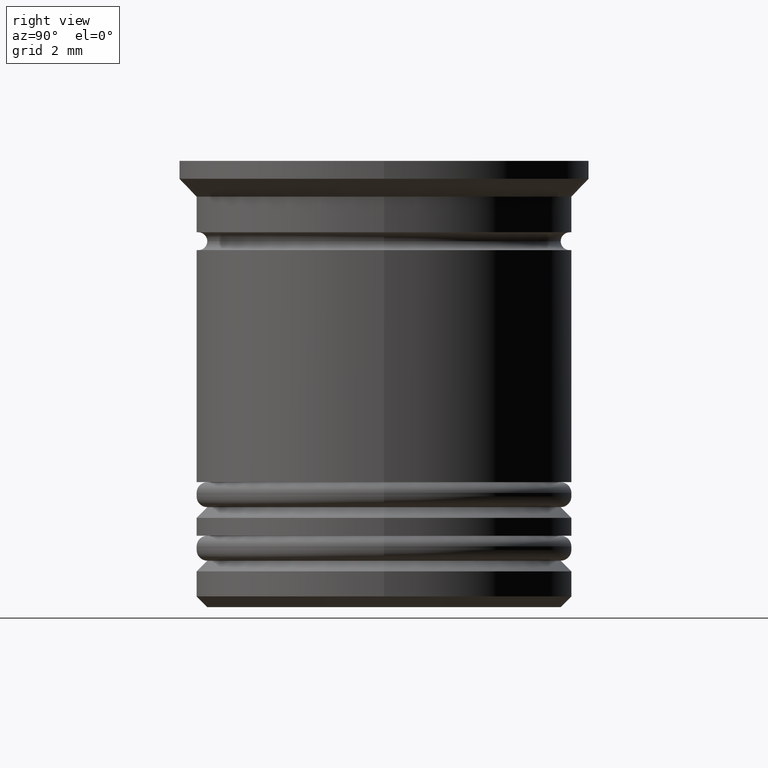
[diagram: clean part render]
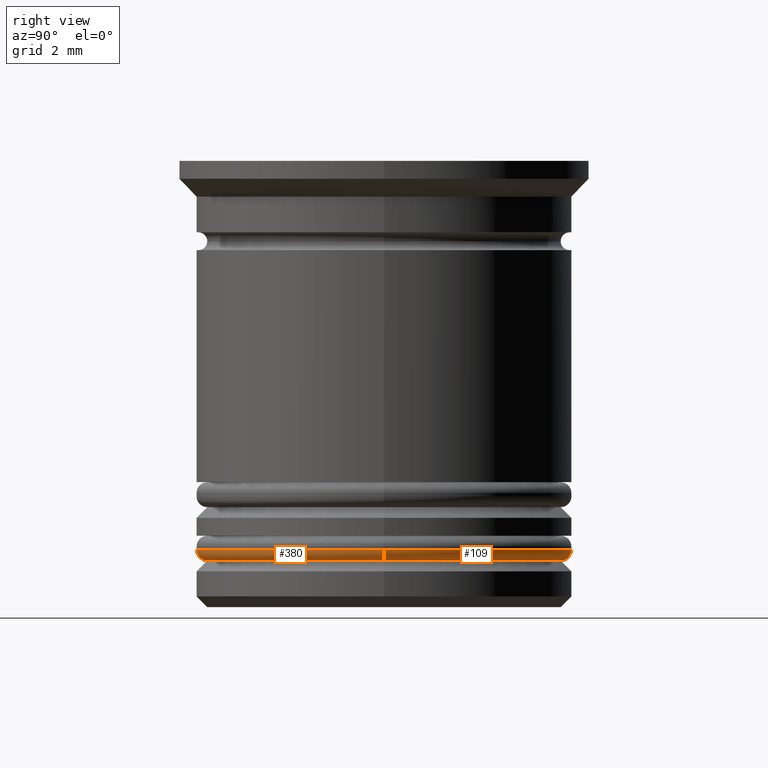
[diagram: same view with one multi-face feature highlighted, each face labeled with its STEP entity id]
A machine part, right view. The highlighted faces form ONE feature: a constant-radius fillet chain: 2 tangent blend faces with common blend radius 0.3 mm. The faces share edges in the B-rep.
Their STEP definitions:
[1] entity #109 (Torus):
#10 = DIRECTION ( 'NONE',  ( 1.000000000000000000, 0.000000000000000000, 0.000000000000000000 ) ) ;
#37 = DIRECTION ( 'NONE',  ( -1.000000000000000000, 1.224646799147353207E-16, 0.000000000000000000 ) ) ;
#102 = VERTEX_POINT ( 'NONE', #484 ) ;
#109 = ADVANCED_FACE ( 'NONE', ( #825 ), #1851, .T. ) ;
#126 = DIRECTION ( 'NONE',  ( 1.000000000000000000, 0.000000000000000000, 0.000000000000000000 ) ) ;
#290 = ORIENTED_EDGE ( 'NONE', *, *, #1850, .F. ) ;
#358 = CARTESIAN_POINT ( 'NONE',  ( 5.250000000000000888, 0.000000000000000000, -10.90000000000001101 ) ) ;
#454 = DIRECTION ( 'NONE',  ( -0.000000000000000000, -0.000000000000000000, -1.000000000000000000 ) ) ;
#484 = CARTESIAN_POINT ( 'NONE',  ( 4.950000000000001066, 0.000000000000000000, -11.20000000000000995 ) ) ;
#519 = DIRECTION ( 'NONE',  ( 0.000000000000000000, 0.000000000000000000, 1.000000000000000000 ) ) ;
#558 = DIRECTION ( 'NONE',  ( 0.000000000000000000, -1.000000000000000000, 0.000000000000000000 ) ) ;
#639 = AXIS2_PLACEMENT_3D ( 'NONE', #1822, #454, #919 ) ;
#673 = AXIS2_PLACEMENT_3D ( 'NONE', #1413, #1887, #37 ) ;
#709 = CARTESIAN_POINT ( 'NONE',  ( 4.950000000000001066, 0.000000000000000000, -10.90000000000001101 ) ) ;
#724 = ORIENTED_EDGE ( 'NONE', *, *, #1259, .T. ) ;
#743 = AXIS2_PLACEMENT_3D ( 'NONE', #868, #1623, #126 ) ;
#751 = VERTEX_POINT ( 'NONE', #358 ) ;
#825 = FACE_OUTER_BOUND ( 'NONE', #929, .T. ) ;
#833 = ORIENTED_EDGE ( 'NONE', *, *, #1967, .F. ) ;
#868 = CARTESIAN_POINT ( 'NONE',  ( 0.000000000000000000, 0.000000000000000000, -10.90000000000001101 ) ) ;
#871 = CIRCLE ( 'NONE', #673, 0.2999999999999999334 ) ;
#919 = DIRECTION ( 'NONE',  ( 1.000000000000000000, 0.000000000000000000, 0.000000000000000000 ) ) ;
#929 = EDGE_LOOP ( 'NONE', ( #833, #724, #1924, #290 ) ) ;
#963 = CIRCLE ( 'NONE', #1690, 0.2999999999999999334 ) ;
#1006 = VERTEX_POINT ( 'NONE', #1594 ) ;
#1032 = DIRECTION ( 'NONE',  ( 0.000000000000000000, 0.000000000000000000, -1.000000000000000000 ) ) ;
#1210 = AXIS2_PLACEMENT_3D ( 'NONE', #1893, #519, #10 ) ;
#1259 = EDGE_CURVE ( 'NONE', #1942, #1006, #871, .T. ) ;
#1413 = CARTESIAN_POINT ( 'NONE',  ( -4.950000000000001066, 6.062001655779399497E-16, -10.90000000000001101 ) ) ;
#1420 = EDGE_CURVE ( 'NONE', #751, #1006, #1588, .T. ) ;
#1588 = CIRCLE ( 'NONE', #743, 5.250000000000000888 ) ;
#1594 = CARTESIAN_POINT ( 'NONE',  ( -5.250000000000000888, 6.429395695523604153E-16, -10.90000000000001101 ) ) ;
#1622 = CIRCLE ( 'NONE', #639, 4.950000000000001066 ) ;
#1623 = DIRECTION ( 'NONE',  ( 0.000000000000000000, 0.000000000000000000, 1.000000000000000000 ) ) ;
#1690 = AXIS2_PLACEMENT_3D ( 'NONE', #709, #558, #1032 ) ;
#1750 = CARTESIAN_POINT ( 'NONE',  ( -4.950000000000001066, 6.245698675651502811E-16, -11.20000000000000995 ) ) ;
#1822 = CARTESIAN_POINT ( 'NONE',  ( 0.000000000000000000, 0.000000000000000000, -11.20000000000000995 ) ) ;
#1850 = EDGE_CURVE ( 'NONE', #102, #751, #963, .T. ) ;
#1851 = TOROIDAL_SURFACE ( 'NONE', #1210, 4.950000000000001066, 0.2999999999999999889 ) ;
#1887 = DIRECTION ( 'NONE',  ( 1.224646799147353207E-16, 1.000000000000000000, -0.000000000000000000 ) ) ;
#1893 = CARTESIAN_POINT ( 'NONE',  ( 0.000000000000000000, 0.000000000000000000, -10.90000000000001101 ) ) ;
#1924 = ORIENTED_EDGE ( 'NONE', *, *, #1420, .F. ) ;
#1942 = VERTEX_POINT ( 'NONE', #1750 ) ;
#1967 = EDGE_CURVE ( 'NONE', #1942, #102, #1622, .T. ) ;
[2] entity #380 (Torus):
#37 = DIRECTION ( 'NONE',  ( -1.000000000000000000, 1.224646799147353207E-16, 0.000000000000000000 ) ) ;
#65 = DIRECTION ( 'NONE',  ( 1.000000000000000000, 0.000000000000000000, 0.000000000000000000 ) ) ;
#102 = VERTEX_POINT ( 'NONE', #484 ) ;
#209 = CARTESIAN_POINT ( 'NONE',  ( 0.000000000000000000, 0.000000000000000000, -10.90000000000001101 ) ) ;
#218 = AXIS2_PLACEMENT_3D ( 'NONE', #1037, #242, #1935 ) ;
#242 = DIRECTION ( 'NONE',  ( -0.000000000000000000, -0.000000000000000000, -1.000000000000000000 ) ) ;
#333 = ORIENTED_EDGE ( 'NONE', *, *, #1850, .T. ) ;
#347 = ORIENTED_EDGE ( 'NONE', *, *, #680, .F. ) ;
#358 = CARTESIAN_POINT ( 'NONE',  ( 5.250000000000000888, 0.000000000000000000, -10.90000000000001101 ) ) ;
#380 = ADVANCED_FACE ( 'NONE', ( #1314 ), #1782, .T. ) ;
#471 = CIRCLE ( 'NONE', #565, 5.250000000000000888 ) ;
#484 = CARTESIAN_POINT ( 'NONE',  ( 4.950000000000001066, 0.000000000000000000, -11.20000000000000995 ) ) ;
#513 = DIRECTION ( 'NONE',  ( 1.000000000000000000, 0.000000000000000000, 0.000000000000000000 ) ) ;
#558 = DIRECTION ( 'NONE',  ( 0.000000000000000000, -1.000000000000000000, 0.000000000000000000 ) ) ;
#565 = AXIS2_PLACEMENT_3D ( 'NONE', #209, #1184, #513 ) ;
#673 = AXIS2_PLACEMENT_3D ( 'NONE', #1413, #1887, #37 ) ;
#680 = EDGE_CURVE ( 'NONE', #1006, #751, #471, .T. ) ;
#709 = CARTESIAN_POINT ( 'NONE',  ( 4.950000000000001066, 0.000000000000000000, -10.90000000000001101 ) ) ;
#751 = VERTEX_POINT ( 'NONE', #358 ) ;
#757 = ORIENTED_EDGE ( 'NONE', *, *, #959, .F. ) ;
#871 = CIRCLE ( 'NONE', #673, 0.2999999999999999334 ) ;
#959 = EDGE_CURVE ( 'NONE', #102, #1942, #1054, .T. ) ;
#963 = CIRCLE ( 'NONE', #1690, 0.2999999999999999334 ) ;
#1006 = VERTEX_POINT ( 'NONE', #1594 ) ;
#1032 = DIRECTION ( 'NONE',  ( 0.000000000000000000, 0.000000000000000000, -1.000000000000000000 ) ) ;
#1037 = CARTESIAN_POINT ( 'NONE',  ( 0.000000000000000000, 0.000000000000000000, -11.20000000000000995 ) ) ;
#1054 = CIRCLE ( 'NONE', #218, 4.950000000000001066 ) ;
#1168 = CARTESIAN_POINT ( 'NONE',  ( 0.000000000000000000, 0.000000000000000000, -10.90000000000001101 ) ) ;
#1184 = DIRECTION ( 'NONE',  ( 0.000000000000000000, 0.000000000000000000, 1.000000000000000000 ) ) ;
#1259 = EDGE_CURVE ( 'NONE', #1942, #1006, #871, .T. ) ;
#1314 = FACE_OUTER_BOUND ( 'NONE', #1754, .T. ) ;
#1413 = CARTESIAN_POINT ( 'NONE',  ( -4.950000000000001066, 6.062001655779399497E-16, -10.90000000000001101 ) ) ;
#1594 = CARTESIAN_POINT ( 'NONE',  ( -5.250000000000000888, 6.429395695523604153E-16, -10.90000000000001101 ) ) ;
#1690 = AXIS2_PLACEMENT_3D ( 'NONE', #709, #558, #1032 ) ;
#1714 = AXIS2_PLACEMENT_3D ( 'NONE', #1168, #1777, #65 ) ;
#1750 = CARTESIAN_POINT ( 'NONE',  ( -4.950000000000001066, 6.245698675651502811E-16, -11.20000000000000995 ) ) ;
#1754 = EDGE_LOOP ( 'NONE', ( #1799, #757, #333, #347 ) ) ;
#1777 = DIRECTION ( 'NONE',  ( 0.000000000000000000, 0.000000000000000000, 1.000000000000000000 ) ) ;
#1782 = TOROIDAL_SURFACE ( 'NONE', #1714, 4.950000000000001066, 0.2999999999999999889 ) ;
#1799 = ORIENTED_EDGE ( 'NONE', *, *, #1259, .F. ) ;
#1850 = EDGE_CURVE ( 'NONE', #102, #751, #963, .T. ) ;
#1887 = DIRECTION ( 'NONE',  ( 1.224646799147353207E-16, 1.000000000000000000, -0.000000000000000000 ) ) ;
#1935 = DIRECTION ( 'NONE',  ( 1.000000000000000000, 0.000000000000000000, 0.000000000000000000 ) ) ;
#1942 = VERTEX_POINT ( 'NONE', #1750 ) ;